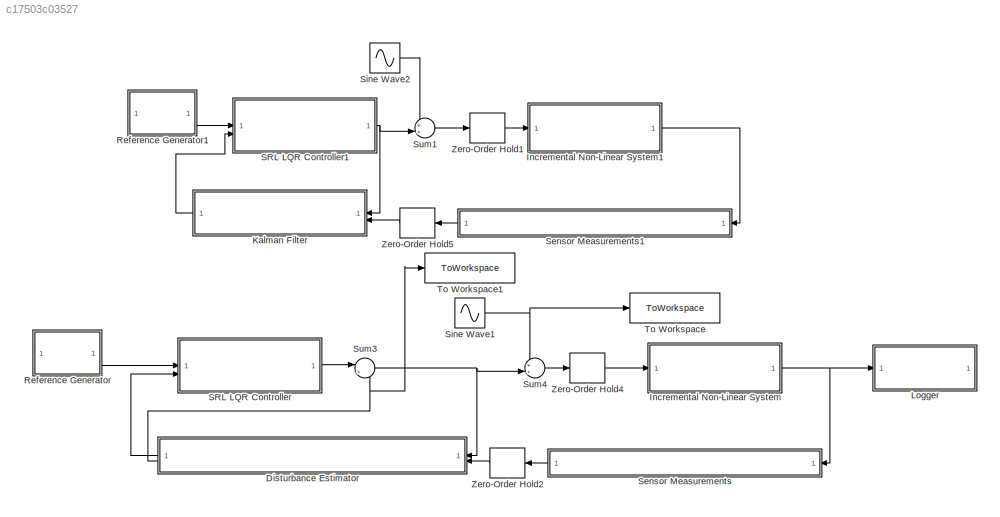
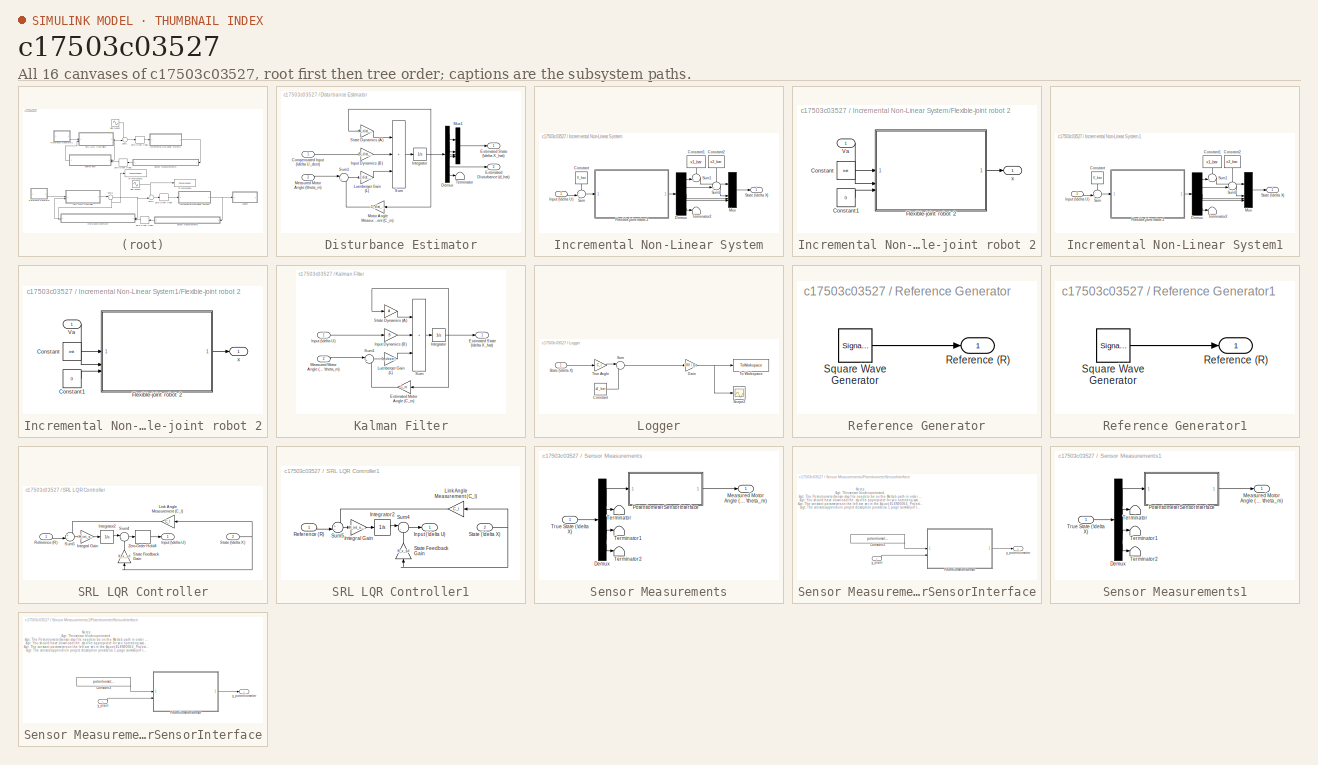
[diagram: thumbnail index - all 16 canvases of the model, root first then tree order]
MODEL slx_c17503c03527
KIND model
CONFIG AbsTol = auto
CONFIG EnableMultiTasking = off
CONFIG FixedStep = auto
CONFIG MaxStep = auto
CONFIG MinStep = auto
CONFIG RelTol = 1e-3
CONFIG SampleTimeConstraint = Unconstrained
CONFIG SolverName = VariableStepAuto
CONFIG StartTime = 0.0
CONFIG StopTime = 10.0
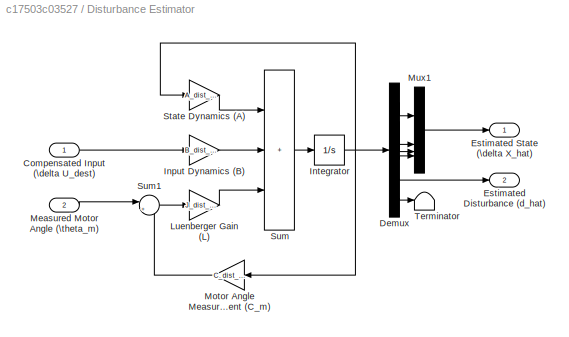
BLOCK [SubSystem] Disturbance Estimator
  NameLocation = top
BLOCK [Outport] Disturbance Estimator/ Estimated Disturbance (d_hat)
  Port = 2
BLOCK [Inport] Disturbance Estimator/Compensated Input (\delta U_dest)
BLOCK [Demux] Disturbance Estimator/Demux
  Outputs = 6
BLOCK [Outport] Disturbance Estimator/Estimated State (\delta X_hat)
BLOCK [Gain] Disturbance Estimator/Input Dynamics (B)
  Gain = B_dist_aug
  Multiplication = Matrix(K*u)
BLOCK [Integrator] Disturbance Estimator/Integrator
BLOCK [Gain] Disturbance Estimator/Luenberger Gain (L)
  Gain = J_dist_est
  Multiplication = Matrix(K*u)
BLOCK [Inport] Disturbance Estimator/Measured Motor Angle (\theta_m)
  Port = 2
BLOCK [Gain] Disturbance Estimator/Motor Angle Measurement (C_m)
  Gain = C_dist_aug
  Multiplication = Matrix(K*u)
  NameLocation = top
BLOCK [Mux] Disturbance Estimator/Mux1
  DisplayOption = bar
BLOCK [Gain] Disturbance Estimator/State Dynamics (A)
  Gain = A_dist_aug
  Multiplication = Matrix(K*u)
BLOCK [Sum] Disturbance Estimator/Sum
  IconShape = rectangular
  Inputs = +++
BLOCK [Sum] Disturbance Estimator/Sum1
  Inputs = |+-
BLOCK [Terminator] Disturbance Estimator/Terminator
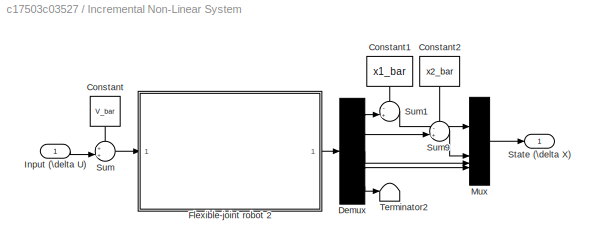
BLOCK [SubSystem] Incremental Non-Linear System
BLOCK [Constant] Incremental Non-Linear System/Constant
  NameLocation = left
  Value = V_bar
BLOCK [Constant] Incremental Non-Linear System/Constant1
  NameLocation = left
  Value = x1_bar
BLOCK [Constant] Incremental Non-Linear System/Constant2
  NameLocation = left
  Value = x2_bar
BLOCK [Demux] Incremental Non-Linear System/Demux
  Outputs = 5
BLOCK [SubSystem] Incremental Non-Linear System/Flexible-joint robot 2
BLOCK [Constant] Incremental Non-Linear System/Flexible-joint robot 2/Constant
  Value = init
BLOCK [Constant] Incremental Non-Linear System/Flexible-joint robot 2/Constant1
  Value = 0
BLOCK [ModelReference] Incremental Non-Linear System/Flexible-joint robot 2/Flexible-joint robot 2
  CopyOfModelProtected = on
  ModelNameDialog = Flexible_joint_robot_2
  ModelReferenceVersion = 1.65
BLOCK [Inport] Incremental Non-Linear System/Flexible-joint robot 2/Va
BLOCK [Outport] Incremental Non-Linear System/Flexible-joint robot 2/x
BLOCK [Inport] Incremental Non-Linear System/Input (\delta U)
BLOCK [Mux] Incremental Non-Linear System/Mux
  DisplayOption = bar
BLOCK [Outport] Incremental Non-Linear System/State (\delta X)
BLOCK [Sum] Incremental Non-Linear System/Sum
  Inputs = ++|
BLOCK [Sum] Incremental Non-Linear System/Sum1
  Inputs = -+|
BLOCK [Sum] Incremental Non-Linear System/Sum9
  Inputs = -+|
BLOCK [Terminator] Incremental Non-Linear System/Terminator2
BLOCK [SubSystem] Incremental Non-Linear System1
BLOCK [Constant] Incremental Non-Linear System1/Constant
  NameLocation = left
  Value = V_bar
BLOCK [Constant] Incremental Non-Linear System1/Constant1
  NameLocation = left
  Value = x1_bar
BLOCK [Constant] Incremental Non-Linear System1/Constant2
  NameLocation = left
  Value = x2_bar
BLOCK [Demux] Incremental Non-Linear System1/Demux
  Outputs = 5
BLOCK [SubSystem] Incremental Non-Linear System1/Flexible-joint robot 2
BLOCK [Constant] Incremental Non-Linear System1/Flexible-joint robot 2/Constant
  Value = init
BLOCK [Constant] Incremental Non-Linear System1/Flexible-joint robot 2/Constant1
  Value = 0
BLOCK [ModelReference] Incremental Non-Linear System1/Flexible-joint robot 2/Flexible-joint robot 2
  CopyOfModelProtected = on
  ModelNameDialog = Flexible_joint_robot_2
  ModelReferenceVersion = 1.65
BLOCK [Inport] Incremental Non-Linear System1/Flexible-joint robot 2/Va
BLOCK [Outport] Incremental Non-Linear System1/Flexible-joint robot 2/x
BLOCK [Inport] Incremental Non-Linear System1/Input (\delta U)
BLOCK [Mux] Incremental Non-Linear System1/Mux
  DisplayOption = bar
BLOCK [Outport] Incremental Non-Linear System1/State (\delta X)
BLOCK [Sum] Incremental Non-Linear System1/Sum
  Inputs = ++|
BLOCK [Sum] Incremental Non-Linear System1/Sum1
  Inputs = -+|
BLOCK [Sum] Incremental Non-Linear System1/Sum9
  Inputs = -+|
BLOCK [Terminator] Incremental Non-Linear System1/Terminator2
BLOCK [SubSystem] Kalman Filter
  NameLocation = top
BLOCK [Gain] Kalman Filter/Estimated Motor Angle (C_m)
  Gain = C_m
  Multiplication = Matrix(K*u)
  NameLocation = top
BLOCK [Outport] Kalman Filter/Estimated State (\delta X_hat)
BLOCK [Inport] Kalman Filter/Input (\delta U)
BLOCK [Gain] Kalman Filter/Input Dynamics (B)
  Gain = B
  Multiplication = Matrix(K*u)
BLOCK [Integrator] Kalman Filter/Integrator
BLOCK [Gain] Kalman Filter/Luenberger Gain (L)
  Gain = J_observer
  Multiplication = Matrix(K*u)
BLOCK [Inport] Kalman Filter/Measured Motor Angle (\delta \theta_m)
  Port = 2
BLOCK [Gain] Kalman Filter/State Dynamics (A)
  Gain = A
  Multiplication = Matrix(K*u)
BLOCK [Sum] Kalman Filter/Sum
  IconShape = rectangular
  Inputs = +++
BLOCK [Sum] Kalman Filter/Sum1
  Inputs = |+-
BLOCK [SubSystem] Logger
BLOCK [Constant] Logger/Constant
  Value = x2_bar
BLOCK [Gain] Logger/Gain
  Gain = 180 / pi
BLOCK [Scope] Logger/Scope2
  Floating = off
  NumInputPorts = 1
  ScopeSpecificationString = Simulink.scopes.TimeScopeBlockCfg('CurrentConfiguration', extmgr.ConfigurationSet(extmgr.Configuration('Core','General UI',true),extmgr.Configuration('Core','Source UI',true),extmgr.Configuration('Sources','WiredSimulink',true,'DataLoggingVariableName','ScopeData5'),extmgr.Configuration('Visuals','Time Domain',true,'SerializedDisplays',{struct('MinYLimReal','11.17002','MaxYLimReal','48.82495','YLa...<+1699ch>
BLOCK [Inport] Logger/State (\delta X)
BLOCK [Sum] Logger/Sum
  Inputs = |++
BLOCK [ToWorkspace] Logger/To Workspace
  FixptAsFi = on
  MaxDataPoints = inf
  SampleTime = -1
  SaveFormat = Timeseries
  VariableName = link_angle
BLOCK [Gain] Logger/True Angle
  Gain = C_l
  Multiplication = Matrix(K*u)
BLOCK [SubSystem] Reference Generator
BLOCK [Outport] Reference Generator/Reference (R)
BLOCK [SignalGenerator] Reference Generator/Square Wave Generator
  Amplitude = wave_amplitude
  Frequency = 1 / wave_period
  WaveForm = square
BLOCK [SubSystem] Reference Generator1
BLOCK [Outport] Reference Generator1/Reference (R)
BLOCK [SignalGenerator] Reference Generator1/Square Wave Generator
  Amplitude = wave_amplitude
  Frequency = 1 / wave_period
  WaveForm = square
BLOCK [SubSystem] SRL LQR Controller
BLOCK [Outport] SRL LQR Controller/Input (\delta U)
BLOCK [Gain] SRL LQR Controller/Integral Gain
  Gain = K_int_srl
BLOCK [Integrator] SRL LQR Controller/Integrator2
BLOCK [Gain] SRL LQR Controller/Link Angle Measurement (C_l)
  Gain = C_l
  Multiplication = Matrix(K*u)
  NameLocation = top
BLOCK [Inport] SRL LQR Controller/Reference (R)
BLOCK [Inport] SRL LQR Controller/State (\delta X)
  Port = 2
BLOCK [Gain] SRL LQR Controller/State Feedback Gain
  Gain = K_x_srl
  Multiplication = Matrix(K*u)
  NameLocation = right
BLOCK [Sum] SRL LQR Controller/Sum4
  Inputs = |--
BLOCK [Sum] SRL LQR Controller/Sum5
  Inputs = +-|
BLOCK [ZeroOrderHold] SRL LQR Controller/Zero-Order Hold4
  SampleTime = min_sampling_time
BLOCK [SubSystem] SRL LQR Controller1
BLOCK [Outport] SRL LQR Controller1/Input (\delta U)
BLOCK [Gain] SRL LQR Controller1/Integral Gain
  Gain = K_int_srl
BLOCK [Integrator] SRL LQR Controller1/Integrator2
BLOCK [Gain] SRL LQR Controller1/Link Angle Measurement (C_l)
  Gain = C_l
  Multiplication = Matrix(K*u)
  NameLocation = top
BLOCK [Inport] SRL LQR Controller1/Reference (R)
BLOCK [Inport] SRL LQR Controller1/State (\delta X)
  Port = 2
BLOCK [Gain] SRL LQR Controller1/State Feedback Gain
  Gain = K_x_srl
  Multiplication = Matrix(K*u)
  NameLocation = right
BLOCK [Sum] SRL LQR Controller1/Sum4
  Inputs = |--
BLOCK [Sum] SRL LQR Controller1/Sum5
  Inputs = +-|
BLOCK [SubSystem] Sensor Measurements
  NameLocation = top
BLOCK [Demux] Sensor Measurements/Demux
BLOCK [Outport] Sensor Measurements/Measured Motor Angle (\delta \theta_m)
BLOCK [SubSystem] Sensor Measurements/PotentiometerSensorInterface
  TreatAsAtomicUnit = on
BLOCK [Constant] Sensor Measurements/PotentiometerSensorInterface/Constant3
  Value = potentiometer_linearity_percent
BLOCK [ModelReference] Sensor Measurements/PotentiometerSensorInterface/PotentiometerSensor
  CopyOfModelProtected = on
  ModelNameDialog = PotentiometerSensor.slxp
  ModelReferenceVersion = 1.21
BLOCK [Inport] Sensor Measurements/PotentiometerSensorInterface/y_plant
BLOCK [Outport] Sensor Measurements/PotentiometerSensorInterface/y_potentiometer
BLOCK [Terminator] Sensor Measurements/Terminator
BLOCK [Terminator] Sensor Measurements/Terminator1
BLOCK [Terminator] Sensor Measurements/Terminator2
BLOCK [Inport] Sensor Measurements/True State (\delta X)
BLOCK [SubSystem] Sensor Measurements1
  NameLocation = top
BLOCK [Demux] Sensor Measurements1/Demux
BLOCK [Outport] Sensor Measurements1/Measured Motor Angle (\delta \theta_m)
BLOCK [SubSystem] Sensor Measurements1/PotentiometerSensorInterface
  TreatAsAtomicUnit = on
BLOCK [Constant] Sensor Measurements1/PotentiometerSensorInterface/Constant3
  Value = potentiometer_linearity_percent
BLOCK [ModelReference] Sensor Measurements1/PotentiometerSensorInterface/PotentiometerSensor
  CopyOfModelProtected = on
  ModelNameDialog = PotentiometerSensor.slxp
  ModelReferenceVersion = 1.21
BLOCK [Inport] Sensor Measurements1/PotentiometerSensorInterface/y_plant
BLOCK [Outport] Sensor Measurements1/PotentiometerSensorInterface/y_potentiometer
BLOCK [Terminator] Sensor Measurements1/Terminator
BLOCK [Terminator] Sensor Measurements1/Terminator1
BLOCK [Terminator] Sensor Measurements1/Terminator2
BLOCK [Inport] Sensor Measurements1/True State (\delta X)
BLOCK [Sin] Sine Wave1
  Amplitude = 0.3
  Frequency = 4*pi
  SampleTime = 0
BLOCK [Sin] Sine Wave2
  Amplitude = 0.3
  Frequency = 4*pi
  SampleTime = 0
BLOCK [Sum] Sum1
  Inputs = ++|
BLOCK [Sum] Sum3
  Inputs = |+-
BLOCK [Sum] Sum4
  Inputs = ++|
BLOCK [ToWorkspace] To Workspace
  FixptAsFi = on
  MaxDataPoints = inf
  SampleTime = -1
  SaveFormat = Timeseries
  VariableName = dist
BLOCK [ToWorkspace] To Workspace1
  FixptAsFi = on
  MaxDataPoints = inf
  SampleTime = -1
  SaveFormat = Timeseries
  VariableName = estdist
BLOCK [ZeroOrderHold] Zero-Order Hold1
  SampleTime = min_sampling_time
BLOCK [ZeroOrderHold] Zero-Order Hold2
  NameLocation = top
  SampleTime = min_sampling_time
BLOCK [ZeroOrderHold] Zero-Order Hold4
  SampleTime = min_sampling_time
BLOCK [ZeroOrderHold] Zero-Order Hold5
  NameLocation = top
  SampleTime = min_sampling_time
ANNOTATION Sensor Measurements/PotentiometerSensorInterface: Notes: > This sensor block is protected. > The PotentiometerSensor.slxp file needs to be on the Matlab path in order to simulate this sensor. > You should have download the .slpx file appropriate for you operating system {Windows, Mac, Linux}. > The constant parameters on the left are set in the " ELEN90064_Project_Parameters.m " script. > The sensors appendix in project description provides a 1-p...<+188ch>
ANNOTATION Sensor Measurements1/PotentiometerSensorInterface: Notes: > This sensor block is protected. > The PotentiometerSensor.slxp file needs to be on the Matlab path in order to simulate this sensor. > You should have download the .slpx file appropriate for you operating system {Windows, Mac, Linux}. > The constant parameters on the left are set in the " ELEN90064_Project_Parameters.m " script. > The sensors appendix in project description provides a 1-p...<+188ch>
LINE Disturbance Estimator/Compensated Input (\delta U_dest):1 -> Disturbance Estimator/Input Dynamics (B):1
LINE Disturbance Estimator/Demux:1 -> Disturbance Estimator/Mux1:1
LINE Disturbance Estimator/Demux:2 -> Disturbance Estimator/Mux1:2
LINE Disturbance Estimator/Demux:3 -> Disturbance Estimator/Mux1:3
LINE Disturbance Estimator/Demux:4 -> Disturbance Estimator/Mux1:4
LINE Disturbance Estimator/Demux:5 -> Disturbance Estimator/ Estimated Disturbance (d_hat):1
LINE Disturbance Estimator/Demux:6 -> Disturbance Estimator/Terminator:1
LINE Disturbance Estimator/Input Dynamics (B):1 -> Disturbance Estimator/Sum:2
NET Disturbance Estimator/Integrator:1 -> Disturbance Estimator/Demux:1, Disturbance Estimator/Motor Angle Measurement (C_m):1, Disturbance Estimator/State Dynamics (A):1
LINE Disturbance Estimator/Luenberger Gain (L):1 -> Disturbance Estimator/Sum:3
LINE Disturbance Estimator/Measured Motor Angle (\theta_m):1 -> Disturbance Estimator/Sum1:1
LINE Disturbance Estimator/Motor Angle Measurement (C_m):1 -> Disturbance Estimator/Sum1:2
LINE Disturbance Estimator/Mux1:1 -> Disturbance Estimator/Estimated State (\delta X_hat):1
LINE Disturbance Estimator/State Dynamics (A):1 -> Disturbance Estimator/Sum:1
LINE Disturbance Estimator/Sum1:1 -> Disturbance Estimator/Luenberger Gain (L):1
LINE Disturbance Estimator/Sum:1 -> Disturbance Estimator/Integrator:1
LINE Disturbance Estimator:1 -> SRL LQR Controller:2
NET Disturbance Estimator:2 -> Sum3:2, To Workspace1:1
LINE Incremental Non-Linear System/Constant1:1 -> Incremental Non-Linear System/Sum1:1
LINE Incremental Non-Linear System/Constant2:1 -> Incremental Non-Linear System/Sum9:1
LINE Incremental Non-Linear System/Constant:1 -> Incremental Non-Linear System/Sum:1
LINE Incremental Non-Linear System/Demux:1 -> Incremental Non-Linear System/Sum1:2
LINE Incremental Non-Linear System/Demux:2 -> Incremental Non-Linear System/Sum9:2
LINE Incremental Non-Linear System/Demux:3 -> Incremental Non-Linear System/Mux:3
LINE Incremental Non-Linear System/Demux:4 -> Incremental Non-Linear System/Mux:4
LINE Incremental Non-Linear System/Demux:5 -> Incremental Non-Linear System/Terminator2:1
LINE Incremental Non-Linear System/Flexible-joint robot 2/Constant1:1 -> Incremental Non-Linear System/Flexible-joint robot 2/Flexible-joint robot 2:3
LINE Incremental Non-Linear System/Flexible-joint robot 2/Constant:1 -> Incremental Non-Linear System/Flexible-joint robot 2/Flexible-joint robot 2:2
LINE Incremental Non-Linear System/Flexible-joint robot 2/Flexible-joint robot 2:1 -> Incremental Non-Linear System/Flexible-joint robot 2/x:1
LINE Incremental Non-Linear System/Flexible-joint robot 2/Va:1 -> Incremental Non-Linear System/Flexible-joint robot 2/Flexible-joint robot 2:1
LINE Incremental Non-Linear System/Flexible-joint robot 2:1 -> Incremental Non-Linear System/Demux:1
LINE Incremental Non-Linear System/Input (\delta U):1 -> Incremental Non-Linear System/Sum:2
LINE Incremental Non-Linear System/Mux:1 -> Incremental Non-Linear System/State (\delta X):1
LINE Incremental Non-Linear System/Sum1:1 -> Incremental Non-Linear System/Mux:1
LINE Incremental Non-Linear System/Sum9:1 -> Incremental Non-Linear System/Mux:2
LINE Incremental Non-Linear System/Sum:1 -> Incremental Non-Linear System/Flexible-joint robot 2:1
LINE Incremental Non-Linear System1/Constant1:1 -> Incremental Non-Linear System1/Sum1:1
LINE Incremental Non-Linear System1/Constant2:1 -> Incremental Non-Linear System1/Sum9:1
LINE Incremental Non-Linear System1/Constant:1 -> Incremental Non-Linear System1/Sum:1
LINE Incremental Non-Linear System1/Demux:1 -> Incremental Non-Linear System1/Sum1:2
LINE Incremental Non-Linear System1/Demux:2 -> Incremental Non-Linear System1/Sum9:2
LINE Incremental Non-Linear System1/Demux:3 -> Incremental Non-Linear System1/Mux:3
LINE Incremental Non-Linear System1/Demux:4 -> Incremental Non-Linear System1/Mux:4
LINE Incremental Non-Linear System1/Demux:5 -> Incremental Non-Linear System1/Terminator2:1
LINE Incremental Non-Linear System1/Flexible-joint robot 2/Constant1:1 -> Incremental Non-Linear System1/Flexible-joint robot 2/Flexible-joint robot 2:3
LINE Incremental Non-Linear System1/Flexible-joint robot 2/Constant:1 -> Incremental Non-Linear System1/Flexible-joint robot 2/Flexible-joint robot 2:2
LINE Incremental Non-Linear System1/Flexible-joint robot 2/Flexible-joint robot 2:1 -> Incremental Non-Linear System1/Flexible-joint robot 2/x:1
LINE Incremental Non-Linear System1/Flexible-joint robot 2/Va:1 -> Incremental Non-Linear System1/Flexible-joint robot 2/Flexible-joint robot 2:1
LINE Incremental Non-Linear System1/Flexible-joint robot 2:1 -> Incremental Non-Linear System1/Demux:1
LINE Incremental Non-Linear System1/Input (\delta U):1 -> Incremental Non-Linear System1/Sum:2
LINE Incremental Non-Linear System1/Mux:1 -> Incremental Non-Linear System1/State (\delta X):1
LINE Incremental Non-Linear System1/Sum1:1 -> Incremental Non-Linear System1/Mux:1
LINE Incremental Non-Linear System1/Sum9:1 -> Incremental Non-Linear System1/Mux:2
LINE Incremental Non-Linear System1/Sum:1 -> Incremental Non-Linear System1/Flexible-joint robot 2:1
LINE Incremental Non-Linear System1:1 -> Sensor Measurements1:1
NET Incremental Non-Linear System:1 -> Logger:1, Sensor Measurements:1
LINE Kalman Filter/Estimated Motor Angle (C_m):1 -> Kalman Filter/Sum1:2
LINE Kalman Filter/Input (\delta U):1 -> Kalman Filter/Input Dynamics (B):1
LINE Kalman Filter/Input Dynamics (B):1 -> Kalman Filter/Sum:2
NET Kalman Filter/Integrator:1 -> Kalman Filter/Estimated Motor Angle (C_m):1, Kalman Filter/Estimated State (\delta X_hat):1, Kalman Filter/State Dynamics (A):1
LINE Kalman Filter/Luenberger Gain (L):1 -> Kalman Filter/Sum:3
LINE Kalman Filter/Measured Motor Angle (\delta \theta_m):1 -> Kalman Filter/Sum1:1
LINE Kalman Filter/State Dynamics (A):1 -> Kalman Filter/Sum:1
LINE Kalman Filter/Sum1:1 -> Kalman Filter/Luenberger Gain (L):1
LINE Kalman Filter/Sum:1 -> Kalman Filter/Integrator:1
LINE Kalman Filter:1 -> SRL LQR Controller1:2
LINE Logger/Constant:1 -> Logger/Sum:2
NET Logger/Gain:1 -> Logger/Scope2:1, Logger/To Workspace:1
LINE Logger/State (\delta X):1 -> Logger/True Angle:1
LINE Logger/Sum:1 -> Logger/Gain:1
LINE Logger/True Angle:1 -> Logger/Sum:1
LINE Reference Generator/Square Wave Generator:1 -> Reference Generator/Reference (R):1
LINE Reference Generator1/Square Wave Generator:1 -> Reference Generator1/Reference (R):1
LINE Reference Generator1:1 -> SRL LQR Controller1:1
LINE Reference Generator:1 -> SRL LQR Controller:1
LINE SRL LQR Controller/Integral Gain:1 -> SRL LQR Controller/Integrator2:1
LINE SRL LQR Controller/Integrator2:1 -> SRL LQR Controller/Sum4:1
LINE SRL LQR Controller/Link Angle Measurement (C_l):1 -> SRL LQR Controller/Sum5:1
LINE SRL LQR Controller/Reference (R):1 -> SRL LQR Controller/Sum5:2
NET SRL LQR Controller/State (\delta X):1 -> SRL LQR Controller/Link Angle Measurement (C_l):1, SRL LQR Controller/State Feedback Gain:1
LINE SRL LQR Controller/State Feedback Gain:1 -> SRL LQR Controller/Sum4:2
LINE SRL LQR Controller/Sum4:1 -> SRL LQR Controller/Zero-Order Hold4:1
LINE SRL LQR Controller/Sum5:1 -> SRL LQR Controller/Integral Gain:1
LINE SRL LQR Controller/Zero-Order Hold4:1 -> SRL LQR Controller/Input (\delta U):1
LINE SRL LQR Controller1/Integral Gain:1 -> SRL LQR Controller1/Integrator2:1
LINE SRL LQR Controller1/Integrator2:1 -> SRL LQR Controller1/Sum4:1
LINE SRL LQR Controller1/Link Angle Measurement (C_l):1 -> SRL LQR Controller1/Sum5:1
LINE SRL LQR Controller1/Reference (R):1 -> SRL LQR Controller1/Sum5:2
NET SRL LQR Controller1/State (\delta X):1 -> SRL LQR Controller1/Link Angle Measurement (C_l):1, SRL LQR Controller1/State Feedback Gain:1
LINE SRL LQR Controller1/State Feedback Gain:1 -> SRL LQR Controller1/Sum4:2
LINE SRL LQR Controller1/Sum4:1 -> SRL LQR Controller1/Input (\delta U):1
LINE SRL LQR Controller1/Sum5:1 -> SRL LQR Controller1/Integral Gain:1
NET SRL LQR Controller1:1 -> Kalman Filter:1, Sum1:2
LINE SRL LQR Controller:1 -> Sum3:1
LINE Sensor Measurements/Demux:1 -> Sensor Measurements/PotentiometerSensorInterface:1
LINE Sensor Measurements/Demux:2 -> Sensor Measurements/Terminator:1
LINE Sensor Measurements/Demux:3 -> Sensor Measurements/Terminator1:1
LINE Sensor Measurements/Demux:4 -> Sensor Measurements/Terminator2:1
LINE Sensor Measurements/PotentiometerSensorInterface/Constant3:1 -> Sensor Measurements/PotentiometerSensorInterface/PotentiometerSensor:1
LINE Sensor Measurements/PotentiometerSensorInterface/PotentiometerSensor:1 -> Sensor Measurements/PotentiometerSensorInterface/y_potentiometer:1
LINE Sensor Measurements/PotentiometerSensorInterface/y_plant:1 -> Sensor Measurements/PotentiometerSensorInterface/PotentiometerSensor:2
LINE Sensor Measurements/PotentiometerSensorInterface:1 -> Sensor Measurements/Measured Motor Angle (\delta \theta_m):1
LINE Sensor Measurements/True State (\delta X):1 -> Sensor Measurements/Demux:1
LINE Sensor Measurements1/Demux:1 -> Sensor Measurements1/PotentiometerSensorInterface:1
LINE Sensor Measurements1/Demux:2 -> Sensor Measurements1/Terminator:1
LINE Sensor Measurements1/Demux:3 -> Sensor Measurements1/Terminator1:1
LINE Sensor Measurements1/Demux:4 -> Sensor Measurements1/Terminator2:1
LINE Sensor Measurements1/PotentiometerSensorInterface/Constant3:1 -> Sensor Measurements1/PotentiometerSensorInterface/PotentiometerSensor:1
LINE Sensor Measurements1/PotentiometerSensorInterface/PotentiometerSensor:1 -> Sensor Measurements1/PotentiometerSensorInterface/y_potentiometer:1
LINE Sensor Measurements1/PotentiometerSensorInterface/y_plant:1 -> Sensor Measurements1/PotentiometerSensorInterface/PotentiometerSensor:2
LINE Sensor Measurements1/PotentiometerSensorInterface:1 -> Sensor Measurements1/Measured Motor Angle (\delta \theta_m):1
LINE Sensor Measurements1/True State (\delta X):1 -> Sensor Measurements1/Demux:1
LINE Sensor Measurements1:1 -> Zero-Order Hold5:1
LINE Sensor Measurements:1 -> Zero-Order Hold2:1
NET Sine Wave1:1 -> Sum4:1, To Workspace:1
LINE Sine Wave2:1 -> Sum1:1
LINE Sum1:1 -> Zero-Order Hold1:1
NET Sum3:1 -> Disturbance Estimator:1, Sum4:2
LINE Sum4:1 -> Zero-Order Hold4:1
LINE Zero-Order Hold1:1 -> Incremental Non-Linear System1:1
LINE Zero-Order Hold2:1 -> Disturbance Estimator:2
LINE Zero-Order Hold4:1 -> Incremental Non-Linear System:1
LINE Zero-Order Hold5:1 -> Kalman Filter:2
note: NET lines group one-source signal fan-out (src -> all destinations, sorted); 1:1 wires keep LINE
